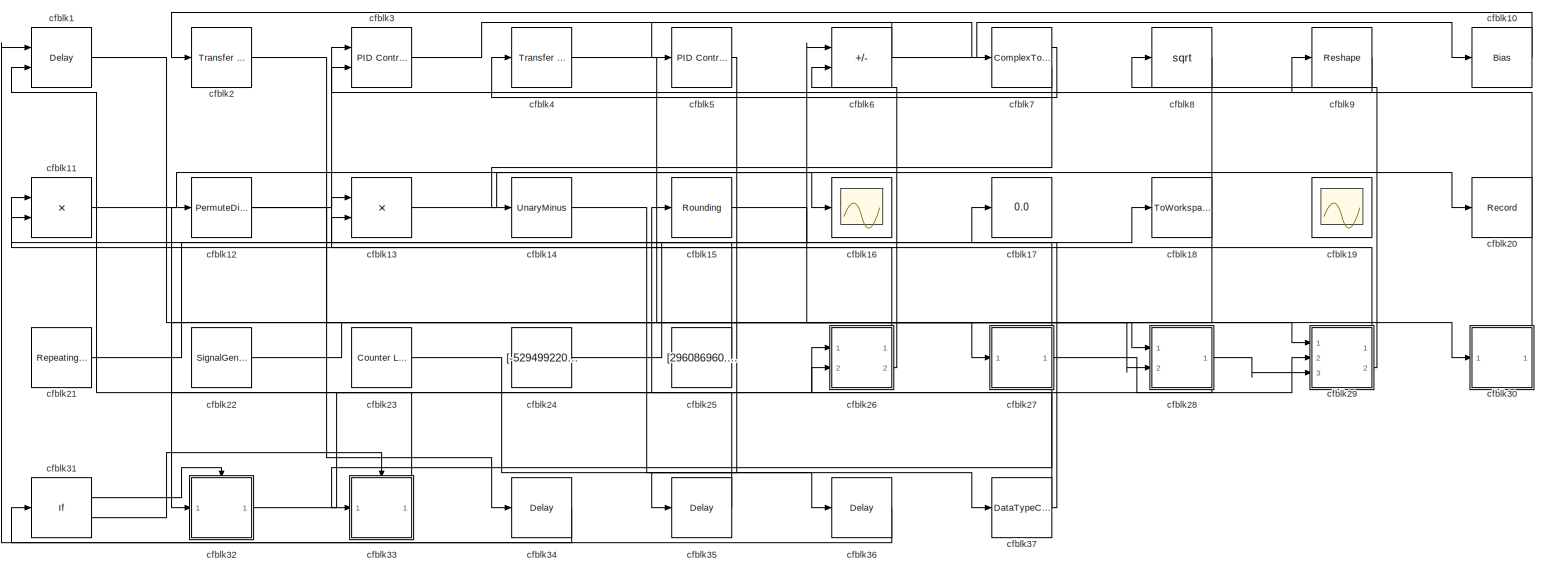
[diagram: root canvas - part 1/1, most of the canvas]
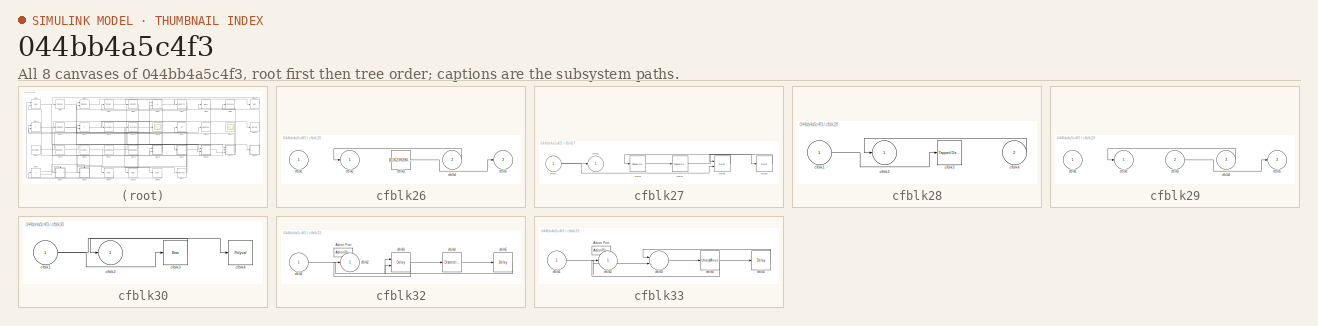
[diagram: thumbnail index - all 8 canvases of the model, root first then tree order]
MODEL slx_044bb4a5c4f3
KIND model
CONFIG AbsTol = auto
CONFIG EnableMultiTasking = off
CONFIG FixedStep = auto
CONFIG MaxStep = auto
CONFIG MinStep = auto
CONFIG RelTol = 1e-3
CONFIG SampleTimeConstraint = Unconstrained
CONFIG SolverName = VariableStepAuto
CONFIG StartTime = 0.0
CONFIG StopTime = 10.0
BLOCK [Delay] cfblk1
  InputPortMap = u0,e6
  Ports = [2, 1]
  SampleTime = 1
  ShowEnablePort = on
BLOCK [Bias] cfblk10
  Bias = [591171973.521648]
  SaturateOnIntegerOverflow = off
BLOCK [Product] cfblk11
  Ports = [2, 1]
BLOCK [PermuteDimensions] cfblk12
BLOCK [Product] cfblk13
  Ports = [2, 1]
BLOCK [UnaryMinus] cfblk14
BLOCK [Rounding] cfblk15
BLOCK [Scope] cfblk16
  Floating = off
  NumInputPorts = 1
  Ports = [1]
BLOCK [Display] cfblk17
  Decimation = 1
  Ports = [1]
BLOCK [ToWorkspace] cfblk18
  FixptAsFi = on
  MaxDataPoints = inf
  Ports = [1]
  SampleTime = -1
  SaveFormat = Timeseries
  VariableName = yihoasn
BLOCK [Scope] cfblk19
  Floating = on
  NumInputPorts = 1
  Ports = []
BLOCK [Reference] cfblk2  REF=simulink/Discrete/Transfer Fcn
Lead or Lag
  Ports = [1, 1]
  SourceBlock = simulink/Discrete/Transfer Fcn\nLead or Lag
  SourceProductBaseCode = SL
  SourceType = Lead or Lag Compensator
BLOCK [Record] cfblk20
  FileSettingsInternal = {"entries":[{"content":{"excelSettings":{"content":{},"type":"Streamout.ExcelSettings"}},"type":"Streamout.FileSettingStorage","uuid":"bdd6402c-e0a0-4988-a4da-b5c546a3e65b"}],"packageUris":["http://schema.mathworks.com/mf0/streamout_blocks/R2020a"],"version":"1.0"}
  Ports = [1]
  SignalsInternal = {"entries":[{"content":{"signals":[{"content":{"blockPath":["sampleModel284/cfblk20"],"channel":[],"dimensions":[1,1],"domain":"sampleModel284/cfblk20","lineColor":"#b746ff","plots":[1],"port":1,"sid":[""],"signalID":12141,"signalName":"cfblk13"},"type":"RecordBlkView.Signal","uuid":"84689b68-0d1c-4066-8b73-51ad552bf1a4"}]},"type":"RecordBlkView.InputSignals","uuid":"ca82de66-10e9-43a6-8759-362566...<+100ch>
  VisualizationBindings = {"sparklinesplugin":{"info":[{"bindingParametersList":[],"subplotID":1}]}}
BLOCK [Reference] cfblk21  REF=simulink/Sources/Repeating
Sequence
Stair
  Ports = [0, 1]
  SourceBlock = simulink/Sources/Repeating\nSequence\nStair
  SourceProductBaseCode = SL
  SourceType = Repeating Sequence Stair
BLOCK [SignalGenerator] cfblk22
  Amplitude = [-831525404.245722]
  Ports = [0, 1]
  Units = rad/sec
BLOCK [Reference] cfblk23  REF=simulink/Sources/Counter
Limited
  Ports = [0, 1]
  SourceBlock = simulink/Sources/Counter\nLimited
  SourceProductBaseCode = SL
  SourceType = Counter Limited
BLOCK [Constant] cfblk24
  SampleTime = 1
  Value = [-529499220.292633]
BLOCK [Constant] cfblk25
  SampleTime = 1
  Value = [296086960.291125]
BLOCK [SubSystem] cfblk26
  Ports = [2, 2]
  RequestExecContextInheritance = off
BLOCK [Inport] cfblk26/cfblk1
BLOCK [Outport] cfblk26/cfblk2
BLOCK [Constant] cfblk26/cfblk3
  SampleTime = 1
  Value = [616239280.657859]
BLOCK [Inport] cfblk26/cfblk4
  Port = 2
BLOCK [Outport] cfblk26/cfblk5
  Port = 2
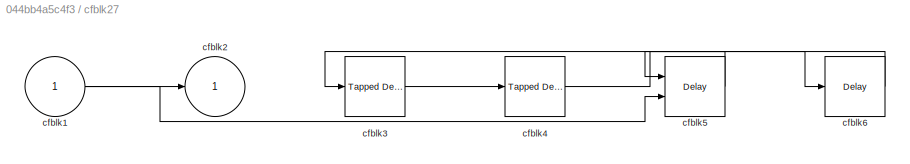
BLOCK [SubSystem] cfblk27
  Ports = [1, 1]
  RequestExecContextInheritance = off
BLOCK [Inport] cfblk27/cfblk1
BLOCK [Outport] cfblk27/cfblk2
BLOCK [Reference] cfblk27/cfblk3  REF=simulink/Discrete/Tapped Delay
  Ports = [1, 1]
  SourceBlock = simulink/Discrete/Tapped Delay
  SourceProductBaseCode = SL
  SourceType = Tapped Delay Line
BLOCK [Reference] cfblk27/cfblk4  REF=simulink/Discrete/Tapped Delay
  Ports = [1, 1]
  SourceBlock = simulink/Discrete/Tapped Delay
  SourceProductBaseCode = SL
  SourceType = Tapped Delay Line
BLOCK [Delay] cfblk27/cfblk5
  DelayLengthSource = Input port
  InputPortMap = u0,p1
  Ports = [2, 1]
  SampleTime = 1
BLOCK [Delay] cfblk27/cfblk6
  InputPortMap = u0
  Ports = [1, 1]
  SampleTime = 1
BLOCK [SubSystem] cfblk28
  Ports = [2, 1]
  RequestExecContextInheritance = off
BLOCK [Inport] cfblk28/cfblk1
BLOCK [Outport] cfblk28/cfblk2
BLOCK [Reference] cfblk28/cfblk3  REF=simulink/Discrete/Tapped Delay
  Ports = [1, 1]
  SourceBlock = simulink/Discrete/Tapped Delay
  SourceProductBaseCode = SL
  SourceType = Tapped Delay Line
BLOCK [Inport] cfblk28/cfblk4
  Port = 2
BLOCK [SubSystem] cfblk29
  Ports = [3, 2]
  RequestExecContextInheritance = off
BLOCK [Inport] cfblk29/cfblk1
BLOCK [Outport] cfblk29/cfblk2
BLOCK [Inport] cfblk29/cfblk3
  Port = 2
BLOCK [Inport] cfblk29/cfblk4
  Port = 3
BLOCK [Outport] cfblk29/cfblk5
  Port = 2
BLOCK [Reference] cfblk3  REF=slpidlib/PID Controller (2DOF)
  Ports = [2, 1]
  SourceBlock = slpidlib/PID Controller (2DOF)
  SourceProductBaseCode = SL
  SourceType = PID 2dof
BLOCK [SubSystem] cfblk30
  Ports = [1, 1]
  RequestExecContextInheritance = off
BLOCK [Inport] cfblk30/cfblk1
BLOCK [Outport] cfblk30/cfblk2
BLOCK [Bias] cfblk30/cfblk3
  Bias = [-824735520.753828]
  SaturateOnIntegerOverflow = off
BLOCK [Polyval] cfblk30/cfblk4
  Coefs = [ +2.081618890e-019, -1.441693666e-014, +4.719686976e-010, -8.536869453e-006, +1.621573104e-001, -8.087801117e+001 ]
BLOCK [If] cfblk31
  IfExpression = u1 >= 0
  Ports = [1, 2]
  SampleTime = 1
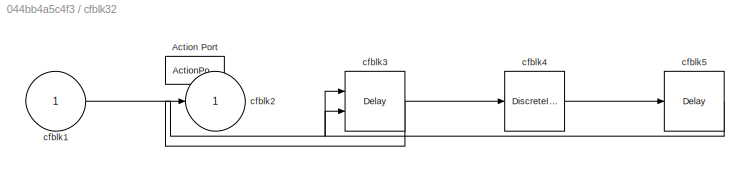
BLOCK [SubSystem] cfblk32
  Ports = [1, 1, 0, 0, 0, 0, 0, 1]
  RequestExecContextInheritance = off
  TreatAsAtomicUnit = on
BLOCK [ActionPort] cfblk32/Action Port
  ActionPortLabel = if(u1 >= 0)
BLOCK [Inport] cfblk32/cfblk1
BLOCK [Outport] cfblk32/cfblk2
BLOCK [Delay] cfblk32/cfblk3
  InputPortMap = u0,e6
  Ports = [2, 1]
  ShowEnablePort = on
BLOCK [DiscreteIntegrator] cfblk32/cfblk4
  ICPrevOutput = DiscIntNeverNeededParam
  ICPrevScaledInput = DiscIntNeverNeededParam
  InitialConditionSetting = Auto
  Ports = [1, 1]
  SampleTime = -1
BLOCK [Delay] cfblk32/cfblk5
  InputPortMap = u0
  Ports = [1, 1]
BLOCK [SubSystem] cfblk33
  Ports = [1, 1, 0, 0, 0, 0, 0, 1]
  RequestExecContextInheritance = off
  TreatAsAtomicUnit = on
BLOCK [ActionPort] cfblk33/Action Port
  ActionPortLabel = else
BLOCK [Inport] cfblk33/cfblk1
BLOCK [Outport] cfblk33/cfblk2
BLOCK [Sum] cfblk33/cfblk3
  Inputs = |++
  Ports = [2, 1]
BLOCK [UnaryMinus] cfblk33/cfblk4
BLOCK [Delay] cfblk33/cfblk5
  InputPortMap = u0
  Ports = [1, 1]
BLOCK [Delay] cfblk34
  InputPortMap = u0
  Ports = [1, 1]
  SampleTime = 1
BLOCK [Delay] cfblk35
  InputPortMap = u0
  Ports = [1, 1]
  SampleTime = 1
BLOCK [Delay] cfblk36
  InputPortMap = u0
  Ports = [1, 1]
  SampleTime = 1
BLOCK [DataTypeConversion] cfblk37
  RndMeth = Floor
  SaturateOnIntegerOverflow = off
BLOCK [Reference] cfblk4  REF=simulink/Discrete/Transfer Fcn
Real Zero
  Ports = [1, 1]
  SourceBlock = simulink/Discrete/Transfer Fcn\nReal Zero
  SourceProductBaseCode = SL
  SourceType = Transfer Fcn Real Zero
BLOCK [Reference] cfblk5  REF=slpidlib/PID Controller
  Ports = [1, 1]
  SourceBlock = slpidlib/PID Controller
  SourceProductBaseCode = SL
  SourceType = PID 1dof
BLOCK [Sum] cfblk6
  IconShape = rectangular
  Inputs = +-
  Ports = [2, 1]
BLOCK [ComplexToMagnitudeAngle] cfblk7
  Ports = [1, 2]
BLOCK [Sqrt] cfblk8
BLOCK [Reshape] cfblk9
  Ports = [1, 1]
LINE cfblk10:1 -> cfblk2:1
LINE cfblk11:1 -> cfblk16:1
NET cfblk12:1 -> cfblk28:2, cfblk3:1
LINE cfblk13:1 -> cfblk20:1
LINE cfblk14:1 -> cfblk36:1
LINE cfblk15:1 -> cfblk29:1
LINE cfblk1:1 -> cfblk27:1
LINE cfblk21:1 -> cfblk18:1
LINE cfblk22:1 -> cfblk30:1
LINE cfblk23:1 -> cfblk37:1
LINE cfblk24:1 -> cfblk6:1
LINE cfblk25:1 -> cfblk13:1
LINE cfblk26/cfblk3:1 -> cfblk26/cfblk5:1
LINE cfblk26/cfblk4:1 -> cfblk26/cfblk2:1
LINE cfblk26:1 -> cfblk11:2
LINE cfblk26:2 -> cfblk6:2
NET cfblk27/cfblk1:1 -> cfblk27/cfblk2:1, cfblk27/cfblk5:2
LINE cfblk27/cfblk3:1 -> cfblk27/cfblk4:1
LINE cfblk27/cfblk4:1 -> cfblk27/cfblk6:1
LINE cfblk27/cfblk5:1 -> cfblk27/cfblk3:1
LINE cfblk27/cfblk6:1 -> cfblk27/cfblk5:1
NET cfblk27:1 -> cfblk11:1, cfblk29:2, cfblk33:1
LINE cfblk28/cfblk1:1 -> cfblk28/cfblk3:1
LINE cfblk28/cfblk4:1 -> cfblk28/cfblk2:1
NET cfblk28:1 -> cfblk26:1, cfblk29:3
LINE cfblk29/cfblk3:1 -> cfblk29/cfblk5:1
LINE cfblk29/cfblk4:1 -> cfblk29/cfblk2:1
LINE cfblk29:1 -> cfblk13:2
LINE cfblk29:2 -> cfblk8:1
LINE cfblk2:1 -> cfblk34:1
NET cfblk30/cfblk1:1 -> cfblk30/cfblk3:1, cfblk30/cfblk4:1
LINE cfblk30/cfblk3:1 -> cfblk30/cfblk2:1
LINE cfblk30:1 -> cfblk9:1
LINE cfblk31:1 -> cfblk32:ifaction
LINE cfblk31:2 -> cfblk33:ifaction
LINE cfblk32/cfblk1:1 -> cfblk32/cfblk3:1
NET cfblk32/cfblk3:1 -> cfblk32/cfblk2:1, cfblk32/cfblk4:1
LINE cfblk32/cfblk4:1 -> cfblk32/cfblk5:1
LINE cfblk32/cfblk5:1 -> cfblk32/cfblk3:2
LINE cfblk32:1 -> cfblk26:2
LINE cfblk33/cfblk1:1 -> cfblk33/cfblk3:2
LINE cfblk33/cfblk3:1 -> cfblk33/cfblk4:1
NET cfblk33/cfblk4:1 -> cfblk33/cfblk2:1, cfblk33/cfblk5:1
LINE cfblk33/cfblk5:1 -> cfblk33/cfblk3:1
LINE cfblk33:1 -> cfblk12:1
LINE cfblk34:1 -> cfblk1:1
LINE cfblk35:1 -> cfblk1:2
LINE cfblk36:1 -> cfblk31:1
NET cfblk37:1 -> cfblk15:1, cfblk17:1
LINE cfblk3:1 -> cfblk7:1
LINE cfblk4:1 -> cfblk28:1
LINE cfblk5:1 -> cfblk35:1
NET cfblk6:1 -> cfblk10:1, cfblk5:1
LINE cfblk7:1 -> cfblk4:1
LINE cfblk7:2 -> cfblk14:1
LINE cfblk8:1 -> cfblk32:1
LINE cfblk9:1 -> cfblk3:2
note: NET lines group one-source signal fan-out (src -> all destinations, sorted); 1:1 wires keep LINE
